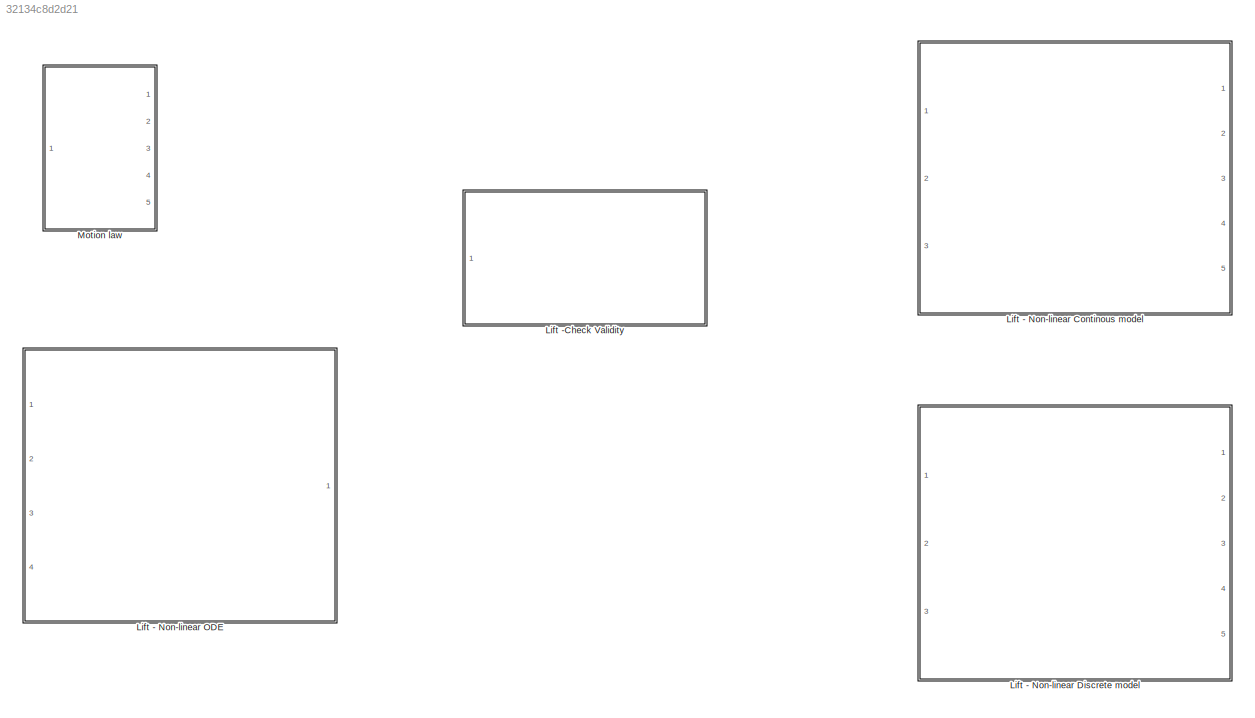
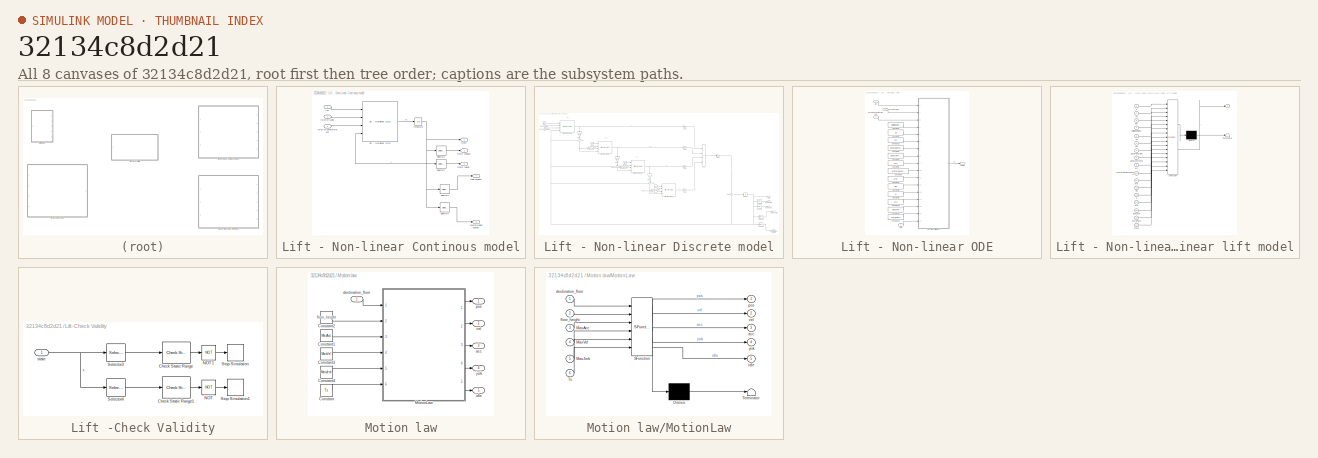
[diagram: thumbnail index - all 8 canvases of the model, root first then tree order]
MODEL slx_32134c8d2d21
KIND library
CONFIG AbsTol = auto
CONFIG EnableMultiTasking = off
CONFIG FixedStep = auto
CONFIG MaxStep = auto
CONFIG MinStep = auto
CONFIG RelTol = 1e-3
CONFIG SampleTimeConstraint = Unconstrained
CONFIG SolverName = VariableStepAuto
CONFIG StartTime = 0.0
CONFIG StopTime = 10.0
BLOCK [SubSystem] Lift - Non-linear Continous model
  Ports = [3, 5]
  RequestExecContextInheritance = off
BLOCK [Integrator] Lift - Non-linear Continous model/Integrator
  InitialCondition = x0
  Ports = [1, 1]
BLOCK [Reference] Lift - Non-linear Continous model/Lift - Non-linear ODE  REF=$bdroot/Lift - Non-linear ODE
  Ports = [4, 1]
  SourceBlock = $bdroot/Lift - Non-linear ODE
BLOCK [Selector] Lift - Non-linear Continous model/Selector1
  IndexOptions = Index vector (dialog)
  Indices = [10]
  InputPortWidth = 10
  OutputSizes = 1
  Ports = [1, 1]
BLOCK [Selector] Lift - Non-linear Continous model/Selector2
  IndexOptions = Index vector (dialog)
  Indices = [9]
  InputPortWidth = 10
  OutputSizes = 1
  Ports = [1, 1]
BLOCK [Selector] Lift - Non-linear Continous model/Selector3
  IndexOptions = Index vector (dialog)
  Indices = [7]
  InputPortWidth = 10
  OutputSizes = 1
  Ports = [1, 1]
BLOCK [Selector] Lift - Non-linear Continous model/Selector4
  IndexOptions = Index vector (dialog)
  Indices = [1]
  InputPortWidth = 10
  OutputSizes = 1
  Ports = [1, 1]
BLOCK [Outport] Lift - Non-linear Continous model/cabin position
  NameLocation = right
  Port = 4
BLOCK [Outport] Lift - Non-linear Continous model/counterweight position
  NameLocation = right
  Port = 5
BLOCK [Inport] Lift - Non-linear Continous model/force on cabin
  Port = 2
BLOCK [Inport] Lift - Non-linear Continous model/force on counterweight
  NameLocation = left
  Port = 3
BLOCK [Outport] Lift - Non-linear Continous model/motor position
  NameLocation = right
  Port = 2
BLOCK [Outport] Lift - Non-linear Continous model/motor velocity
  NameLocation = right
  Port = 3
BLOCK [Outport] Lift - Non-linear Continous model/state
  NameLocation = right
BLOCK [Inport] Lift - Non-linear Continous model/tau
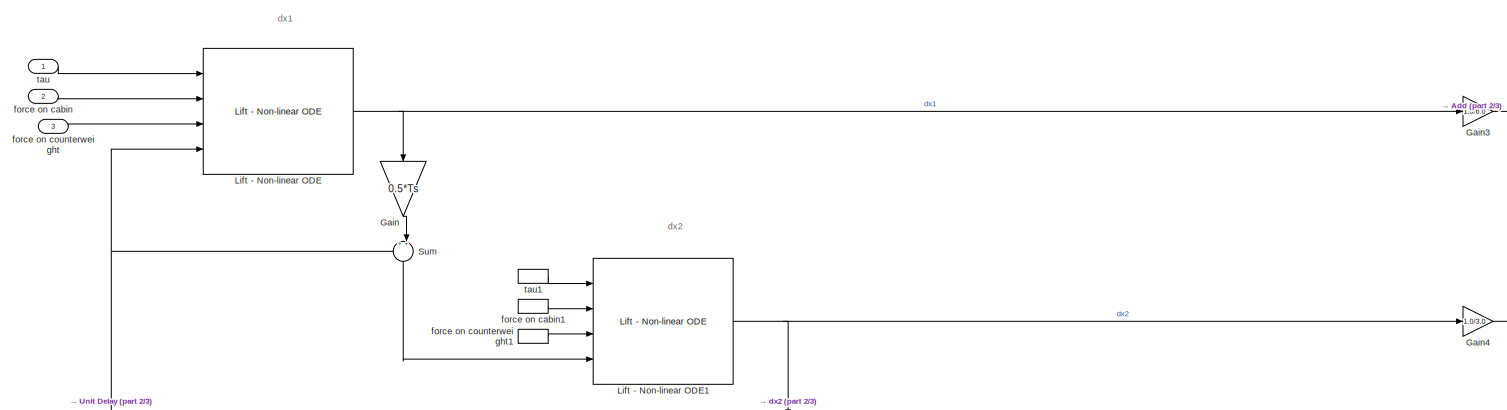
[diagram: Lift - Non-linear Discrete model - part 1/3, top left region]
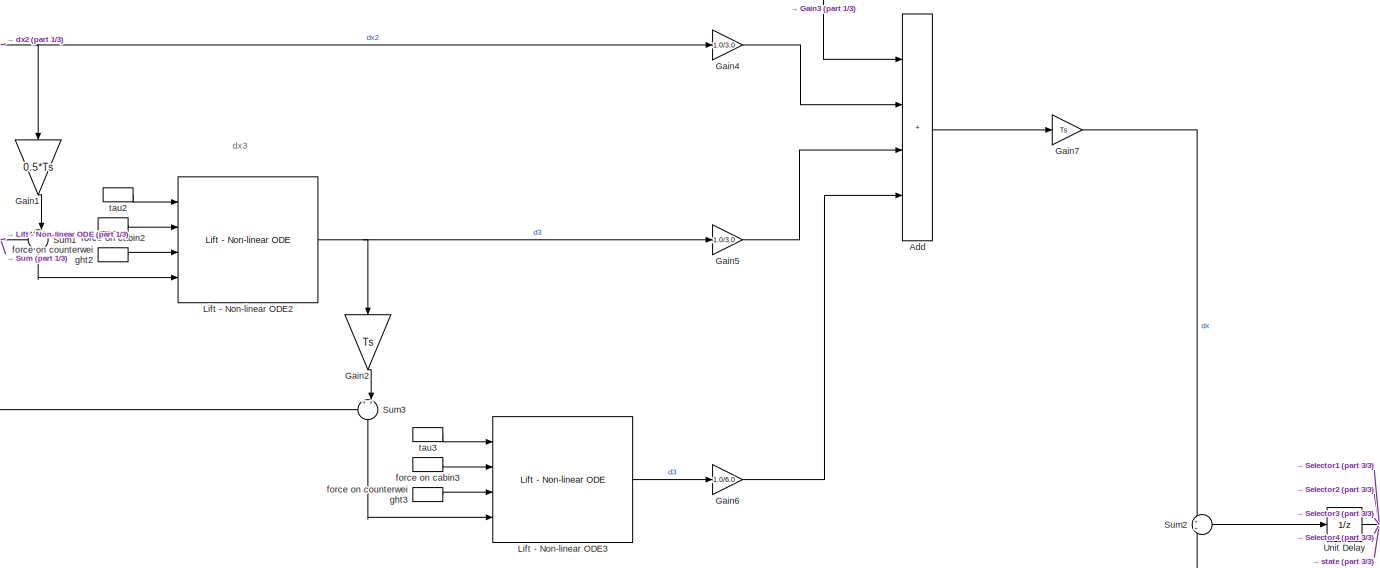
[diagram: Lift - Non-linear Discrete model - part 2/3, central region]
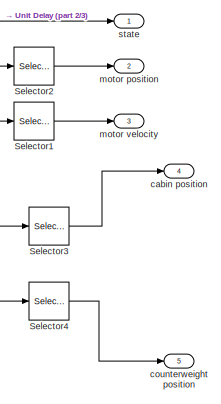
[diagram: Lift - Non-linear Discrete model - part 3/3, bottom right region]
BLOCK [SubSystem] Lift - Non-linear Discrete model
  Ports = [3, 5]
  RequestExecContextInheritance = off
BLOCK [Sum] Lift - Non-linear Discrete model/Add
  IconShape = rectangular
  Inputs = ++++
  Ports = [4, 1]
BLOCK [Gain] Lift - Non-linear Discrete model/Gain
  Gain = 0.5*Ts
  NameLocation = left
BLOCK [Gain] Lift - Non-linear Discrete model/Gain1
  Gain = 0.5*Ts
  NameLocation = left
BLOCK [Gain] Lift - Non-linear Discrete model/Gain2
  Gain = Ts
  NameLocation = left
BLOCK [Gain] Lift - Non-linear Discrete model/Gain3
  Gain = 1.0/6.0
BLOCK [Gain] Lift - Non-linear Discrete model/Gain4
  Gain = 1.0/3.0
BLOCK [Gain] Lift - Non-linear Discrete model/Gain5
  Gain = 1.0/3.0
BLOCK [Gain] Lift - Non-linear Discrete model/Gain6
  Gain = 1.0/6.0
BLOCK [Gain] Lift - Non-linear Discrete model/Gain7
  Gain = Ts
BLOCK [Reference] Lift - Non-linear Discrete model/Lift - Non-linear ODE  REF=$bdroot/Lift - Non-linear ODE
  Ports = [4, 1]
  SourceBlock = $bdroot/Lift - Non-linear ODE
BLOCK [Reference] Lift - Non-linear Discrete model/Lift - Non-linear ODE1  REF=$bdroot/Lift - Non-linear ODE
  Ports = [4, 1]
  SourceBlock = $bdroot/Lift - Non-linear ODE
BLOCK [Reference] Lift - Non-linear Discrete model/Lift - Non-linear ODE2  REF=$bdroot/Lift - Non-linear ODE
  Ports = [4, 1]
  SourceBlock = $bdroot/Lift - Non-linear ODE
BLOCK [Reference] Lift - Non-linear Discrete model/Lift - Non-linear ODE3  REF=$bdroot/Lift - Non-linear ODE
  Ports = [4, 1]
  SourceBlock = $bdroot/Lift - Non-linear ODE
BLOCK [Selector] Lift - Non-linear Discrete model/Selector1
  IndexOptions = Index vector (dialog)
  Indices = [10]
  InputPortWidth = 10
  OutputSizes = 1
  Ports = [1, 1]
BLOCK [Selector] Lift - Non-linear Discrete model/Selector2
  IndexOptions = Index vector (dialog)
  Indices = [9]
  InputPortWidth = 10
  OutputSizes = 1
  Ports = [1, 1]
BLOCK [Selector] Lift - Non-linear Discrete model/Selector3
  IndexOptions = Index vector (dialog)
  Indices = [7]
  InputPortWidth = 10
  OutputSizes = 1
  Ports = [1, 1]
BLOCK [Selector] Lift - Non-linear Discrete model/Selector4
  IndexOptions = Index vector (dialog)
  Indices = [1]
  InputPortWidth = 10
  OutputSizes = 1
  Ports = [1, 1]
BLOCK [Sum] Lift - Non-linear Discrete model/Sum
  Inputs = ++|
  NameLocation = left
  Ports = [2, 1]
BLOCK [Sum] Lift - Non-linear Discrete model/Sum1
  Inputs = ++|
  NameLocation = left
  Ports = [2, 1]
BLOCK [Sum] Lift - Non-linear Discrete model/Sum2
  Ports = [2, 1]
BLOCK [Sum] Lift - Non-linear Discrete model/Sum3
  Inputs = ++|
  NameLocation = left
  Ports = [2, 1]
BLOCK [UnitDelay] Lift - Non-linear Discrete model/Unit Delay
  HasFrameUpgradeWarning = on
  InitialCondition = x0
  SampleTime = Ts
BLOCK [Outport] Lift - Non-linear Discrete model/cabin position
  NameLocation = right
  Port = 4
BLOCK [Outport] Lift - Non-linear Discrete model/counterweight position
  NameLocation = right
  Port = 5
BLOCK [Inport] Lift - Non-linear Discrete model/force on cabin
  Port = 2
BLOCK [InportShadow] Lift - Non-linear Discrete model/force on cabin1
  Port = 2
BLOCK [InportShadow] Lift - Non-linear Discrete model/force on cabin2
  Port = 2
BLOCK [InportShadow] Lift - Non-linear Discrete model/force on cabin3
  Port = 2
BLOCK [Inport] Lift - Non-linear Discrete model/force on counterweight
  NameLocation = left
  Port = 3
BLOCK [InportShadow] Lift - Non-linear Discrete model/force on counterweight1
  NameLocation = left
  Port = 3
BLOCK [InportShadow] Lift - Non-linear Discrete model/force on counterweight2
  NameLocation = left
  Port = 3
BLOCK [InportShadow] Lift - Non-linear Discrete model/force on counterweight3
  NameLocation = left
  Port = 3
BLOCK [Outport] Lift - Non-linear Discrete model/motor position
  NameLocation = right
  Port = 2
BLOCK [Outport] Lift - Non-linear Discrete model/motor velocity
  NameLocation = right
  Port = 3
BLOCK [Outport] Lift - Non-linear Discrete model/state
  NameLocation = right
BLOCK [Inport] Lift - Non-linear Discrete model/tau
BLOCK [InportShadow] Lift - Non-linear Discrete model/tau1
BLOCK [InportShadow] Lift - Non-linear Discrete model/tau2
BLOCK [InportShadow] Lift - Non-linear Discrete model/tau3
BLOCK [SubSystem] Lift - Non-linear ODE
  Ports = [4, 1]
  RequestExecContextInheritance = off
BLOCK [Constant] Lift - Non-linear ODE/Constant1
  Value = BuildingHeight
BLOCK [Constant] Lift - Non-linear ODE/Constant10
  Value = mu
BLOCK [Constant] Lift - Non-linear ODE/Constant11
  Value = gearbox
BLOCK [Constant] Lift - Non-linear ODE/Constant12
  Value = Jm
BLOCK [Constant] Lift - Non-linear ODE/Constant13
  Value = min_length
BLOCK [Constant] Lift - Non-linear ODE/Constant2
  Value = Jp
BLOCK [Constant] Lift - Non-linear ODE/Constant3
  Value = LinearDamping
BLOCK [Constant] Lift - Non-linear ODE/Constant4
  Value = LinearStiffness
BLOCK [Constant] Lift - Non-linear ODE/Constant5
  Value = Mc
BLOCK [Constant] Lift - Non-linear ODE/Constant6
  Value = MotorViscousFriction
BLOCK [Constant] Lift - Non-linear ODE/Constant7
  Value = Mw
BLOCK [Constant] Lift - Non-linear ODE/Constant8
  Value = Rp
BLOCK [Constant] Lift - Non-linear ODE/Constant9
  Value = g
BLOCK [Outport] Lift - Non-linear ODE/Dstate
  NameLocation = right
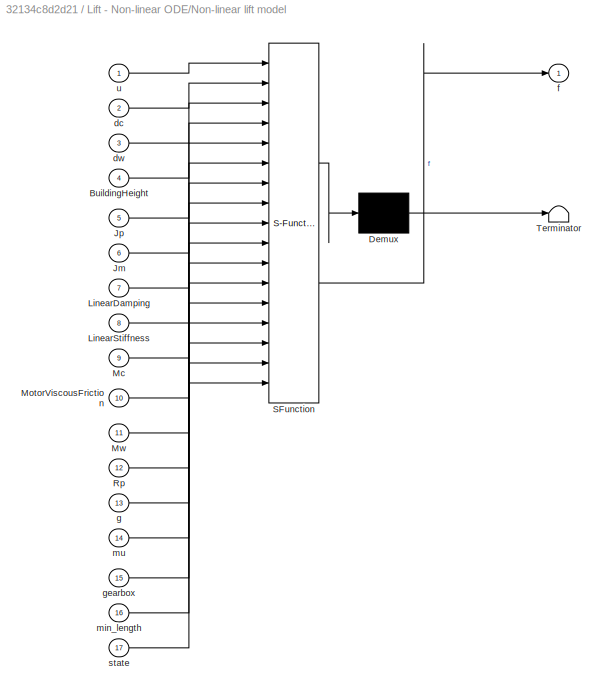
BLOCK [SubSystem] Lift - Non-linear ODE/Non-linear lift model
  ErrorFcn = Stateflow.Translate.translate
  PermitHierarchicalResolution = ExplicitOnly
  Ports = [17, 1]
  RequestExecContextInheritance = off
  SFBlockType = MATLAB Function
  TreatAsAtomicUnit = on
BLOCK [Demux] Lift - Non-linear ODE/Non-linear lift model/ Demux 
  Outputs = 1
  Ports = [1, 1]
BLOCK [S-Function] Lift - Non-linear ODE/Non-linear lift model/ SFunction 
  EnableBusSupport = off
  FunctionName = sf_sfun
  PortCounts = [17 2]
  Ports = [17, 2]
  SFcnIsStateOwnerBlock = off
  SFunctionDeploymentMode = off
  Tag = Stateflow S-Function 3
BLOCK [Terminator] Lift - Non-linear ODE/Non-linear lift model/ Terminator 
BLOCK [Inport] Lift - Non-linear ODE/Non-linear lift model/BuildingHeight
  Port = 4
BLOCK [Inport] Lift - Non-linear ODE/Non-linear lift model/Jm
  Port = 6
BLOCK [Inport] Lift - Non-linear ODE/Non-linear lift model/Jp
  Port = 5
BLOCK [Inport] Lift - Non-linear ODE/Non-linear lift model/LinearDamping
  Port = 7
BLOCK [Inport] Lift - Non-linear ODE/Non-linear lift model/LinearStiffness
  Port = 8
BLOCK [Inport] Lift - Non-linear ODE/Non-linear lift model/Mc
  Port = 9
BLOCK [Inport] Lift - Non-linear ODE/Non-linear lift model/MotorViscousFriction
  Port = 10
BLOCK [Inport] Lift - Non-linear ODE/Non-linear lift model/Mw
  Port = 11
BLOCK [Inport] Lift - Non-linear ODE/Non-linear lift model/Rp
  Port = 12
BLOCK [Inport] Lift - Non-linear ODE/Non-linear lift model/dc
  Port = 2
BLOCK [Inport] Lift - Non-linear ODE/Non-linear lift model/dw
  Port = 3
BLOCK [Outport] Lift - Non-linear ODE/Non-linear lift model/f
BLOCK [Inport] Lift - Non-linear ODE/Non-linear lift model/g
  Port = 13
BLOCK [Inport] Lift - Non-linear ODE/Non-linear lift model/gearbox
  Port = 15
BLOCK [Inport] Lift - Non-linear ODE/Non-linear lift model/min_length
  Port = 16
BLOCK [Inport] Lift - Non-linear ODE/Non-linear lift model/mu
  Port = 14
BLOCK [Inport] Lift - Non-linear ODE/Non-linear lift model/state
  Port = 17
BLOCK [Inport] Lift - Non-linear ODE/Non-linear lift model/u
BLOCK [Inport] Lift - Non-linear ODE/force on cabin
  Port = 2
BLOCK [Inport] Lift - Non-linear ODE/force on counterweight
  NameLocation = left
  Port = 3
BLOCK [Inport] Lift - Non-linear ODE/state
  Port = 4
BLOCK [Inport] Lift - Non-linear ODE/tau
BLOCK [SubSystem] Lift -Check Validity
  Ports = [1]
  RequestExecContextInheritance = off
BLOCK [Reference] Lift -Check Validity/Check Static Range  REF=simulink/Model
Verification/Check 
Static Range
  Description = -min_length*.9 <= u <= BuildingHeight+min_length*.9
  Ports = [1, 1]
  SourceBlock = simulink/Model\nVerification/Check \nStatic Range
  SourceProductBaseCode = SL
  SourceType = Checks_SRange
BLOCK [Reference] Lift -Check Validity/Check Static Range1  REF=simulink/Model
Verification/Check 
Static Range
  Description = -min_length*.9 <= u <= BuildingHeight+min_length*.9
  Ports = [1, 1]
  SourceBlock = simulink/Model\nVerification/Check \nStatic Range
  SourceProductBaseCode = SL
  SourceType = Checks_SRange
BLOCK [Logic] Lift -Check Validity/NOT
  AllPortsSameDT = off
  IconShape = distinctive
  Operator = NOT
  OutDataTypeStr = boolean
  Ports = [1, 1]
BLOCK [Logic] Lift -Check Validity/NOT1
  AllPortsSameDT = off
  IconShape = distinctive
  Operator = NOT
  OutDataTypeStr = boolean
  Ports = [1, 1]
BLOCK [Selector] Lift -Check Validity/Selector3
  IndexOptions = Index vector (dialog)
  Indices = [7]
  InputPortWidth = 10
  OutputSizes = 1
  Ports = [1, 1]
BLOCK [Selector] Lift -Check Validity/Selector4
  IndexOptions = Index vector (dialog)
  Indices = [1]
  InputPortWidth = 10
  OutputSizes = 1
  Ports = [1, 1]
BLOCK [Stop] Lift -Check Validity/Stop Simulation
BLOCK [Stop] Lift -Check Validity/Stop Simulation1
BLOCK [Inport] Lift -Check Validity/state
BLOCK [SubSystem] Motion law
  Ports = [1, 5]
  RequestExecContextInheritance = off
BLOCK [Constant] Motion law/Constant
  Value = Ts
BLOCK [Constant] Motion law/Constant1
  Value = MaxAcc
BLOCK [Constant] Motion law/Constant2
  Value = floor_height
BLOCK [Constant] Motion law/Constant3
  Value = MaxVel
BLOCK [Constant] Motion law/Constant4
  Value = MaxJerk
BLOCK [SubSystem] Motion law/MotionLaw
  ErrorFcn = Stateflow.Translate.translate
  PermitHierarchicalResolution = ExplicitOnly
  Ports = [6, 5]
  RequestExecContextInheritance = off
  SFBlockType = MATLAB Function
  SystemSampleTime = Ts
  TreatAsAtomicUnit = on
BLOCK [Demux] Motion law/MotionLaw/ Demux 
  Outputs = 1
  Ports = [1, 1]
BLOCK [S-Function] Motion law/MotionLaw/ SFunction 
  EnableBusSupport = on
  FunctionName = sf_sfun
  PortCounts = [6 6]
  Ports = [6, 6]
  SFcnIsStateOwnerBlock = off
  SFunctionDeploymentMode = off
  Tag = Stateflow S-Function 1
BLOCK [Terminator] Motion law/MotionLaw/ Terminator 
BLOCK [Inport] Motion law/MotionLaw/MaxAcc
  Port = 3
BLOCK [Inport] Motion law/MotionLaw/MaxJerk
  Port = 5
BLOCK [Inport] Motion law/MotionLaw/MaxVel
  Port = 4
BLOCK [Inport] Motion law/MotionLaw/Ts
  Port = 6
BLOCK [Outport] Motion law/MotionLaw/acc
  Port = 3
BLOCK [Inport] Motion law/MotionLaw/destination_floor
BLOCK [Inport] Motion law/MotionLaw/floor_height
  Port = 2
BLOCK [Outport] Motion law/MotionLaw/idle
  Port = 5
BLOCK [Outport] Motion law/MotionLaw/jerk
  Port = 4
BLOCK [Outport] Motion law/MotionLaw/pos
BLOCK [Outport] Motion law/MotionLaw/vel
  Port = 2
BLOCK [Outport] Motion law/acc
  Port = 3
BLOCK [Inport] Motion law/destination_floor
BLOCK [Outport] Motion law/idle
  NameLocation = top
  Port = 5
BLOCK [Outport] Motion law/jerk
  Port = 4
BLOCK [Outport] Motion law/pos
BLOCK [Outport] Motion law/vel
  Port = 2
ANNOTATION Lift - Non-linear Discrete model: dx1
ANNOTATION Lift - Non-linear Discrete model: dx2
ANNOTATION Lift - Non-linear Discrete model: dx3
NET Lift - Non-linear Continous model/Integrator:1 -> Lift - Non-linear Continous model/Lift - Non-linear ODE:4, Lift - Non-linear Continous model/Selector1:1, Lift - Non-linear Continous model/Selector2:1, Lift - Non-linear Continous model/Selector3:1, Lift - Non-linear Continous model/Selector4:1, Lift - Non-linear Continous model/state:1
LINE Lift - Non-linear Continous model/Lift - Non-linear ODE:1 -> Lift - Non-linear Continous model/Integrator:1
LINE Lift - Non-linear Continous model/Selector1:1 -> Lift - Non-linear Continous model/motor velocity:1
LINE Lift - Non-linear Continous model/Selector2:1 -> Lift - Non-linear Continous model/motor position:1
LINE Lift - Non-linear Continous model/Selector3:1 -> Lift - Non-linear Continous model/cabin position:1
LINE Lift - Non-linear Continous model/Selector4:1 -> Lift - Non-linear Continous model/counterweight position:1
LINE Lift - Non-linear Continous model/force on cabin:1 -> Lift - Non-linear Continous model/Lift - Non-linear ODE:2
LINE Lift - Non-linear Continous model/force on counterweight:1 -> Lift - Non-linear Continous model/Lift - Non-linear ODE:3
LINE Lift - Non-linear Continous model/tau:1 -> Lift - Non-linear Continous model/Lift - Non-linear ODE:1
LINE Lift - Non-linear Discrete model/Add:1 -> Lift - Non-linear Discrete model/Gain7:1
LINE Lift - Non-linear Discrete model/Gain1:1 -> Lift - Non-linear Discrete model/Sum1:2
LINE Lift - Non-linear Discrete model/Gain2:1 -> Lift - Non-linear Discrete model/Sum3:2
LINE Lift - Non-linear Discrete model/Gain3:1 -> Lift - Non-linear Discrete model/Add:1
LINE Lift - Non-linear Discrete model/Gain4:1 -> Lift - Non-linear Discrete model/Add:2
LINE Lift - Non-linear Discrete model/Gain5:1 -> Lift - Non-linear Discrete model/Add:3
LINE Lift - Non-linear Discrete model/Gain6:1 -> Lift - Non-linear Discrete model/Add:4
LINE Lift - Non-linear Discrete model/Gain7:1 -> Lift - Non-linear Discrete model/Sum2:1
LINE Lift - Non-linear Discrete model/Gain:1 -> Lift - Non-linear Discrete model/Sum:2
NET Lift - Non-linear Discrete model/Lift - Non-linear ODE1:1 -> Lift - Non-linear Discrete model/Gain1:1, Lift - Non-linear Discrete model/Gain4:1
NET Lift - Non-linear Discrete model/Lift - Non-linear ODE2:1 -> Lift - Non-linear Discrete model/Gain2:1, Lift - Non-linear Discrete model/Gain5:1
LINE Lift - Non-linear Discrete model/Lift - Non-linear ODE3:1 -> Lift - Non-linear Discrete model/Gain6:1
NET Lift - Non-linear Discrete model/Lift - Non-linear ODE:1 -> Lift - Non-linear Discrete model/Gain3:1, Lift - Non-linear Discrete model/Gain:1
LINE Lift - Non-linear Discrete model/Selector1:1 -> Lift - Non-linear Discrete model/motor velocity:1
LINE Lift - Non-linear Discrete model/Selector2:1 -> Lift - Non-linear Discrete model/motor position:1
LINE Lift - Non-linear Discrete model/Selector3:1 -> Lift - Non-linear Discrete model/cabin position:1
LINE Lift - Non-linear Discrete model/Selector4:1 -> Lift - Non-linear Discrete model/counterweight position:1
LINE Lift - Non-linear Discrete model/Sum1:1 -> Lift - Non-linear Discrete model/Lift - Non-linear ODE2:4
LINE Lift - Non-linear Discrete model/Sum2:1 -> Lift - Non-linear Discrete model/Unit Delay:1
LINE Lift - Non-linear Discrete model/Sum3:1 -> Lift - Non-linear Discrete model/Lift - Non-linear ODE3:4
LINE Lift - Non-linear Discrete model/Sum:1 -> Lift - Non-linear Discrete model/Lift - Non-linear ODE1:4
NET Lift - Non-linear Discrete model/Unit Delay:1 -> Lift - Non-linear Discrete model/Lift - Non-linear ODE:4, Lift - Non-linear Discrete model/Selector1:1, Lift - Non-linear Discrete model/Selector2:1, Lift - Non-linear Discrete model/Selector3:1, Lift - Non-linear Discrete model/Selector4:1, Lift - Non-linear Discrete model/Sum1:1, Lift - Non-linear Discrete model/Sum2:2, Lift - Non-linear Discrete model/Sum3:1, Lift - Non-linear Discrete model/Sum:1, Lift - Non-linear Discrete model/state:1
LINE Lift - Non-linear Discrete model/force on cabin1:1 -> Lift - Non-linear Discrete model/Lift - Non-linear ODE1:2
LINE Lift - Non-linear Discrete model/force on cabin2:1 -> Lift - Non-linear Discrete model/Lift - Non-linear ODE2:2
LINE Lift - Non-linear Discrete model/force on cabin3:1 -> Lift - Non-linear Discrete model/Lift - Non-linear ODE3:2
LINE Lift - Non-linear Discrete model/force on cabin:1 -> Lift - Non-linear Discrete model/Lift - Non-linear ODE:2
LINE Lift - Non-linear Discrete model/force on counterweight1:1 -> Lift - Non-linear Discrete model/Lift - Non-linear ODE1:3
LINE Lift - Non-linear Discrete model/force on counterweight2:1 -> Lift - Non-linear Discrete model/Lift - Non-linear ODE2:3
LINE Lift - Non-linear Discrete model/force on counterweight3:1 -> Lift - Non-linear Discrete model/Lift - Non-linear ODE3:3
LINE Lift - Non-linear Discrete model/force on counterweight:1 -> Lift - Non-linear Discrete model/Lift - Non-linear ODE:3
LINE Lift - Non-linear Discrete model/tau1:1 -> Lift - Non-linear Discrete model/Lift - Non-linear ODE1:1
LINE Lift - Non-linear Discrete model/tau2:1 -> Lift - Non-linear Discrete model/Lift - Non-linear ODE2:1
LINE Lift - Non-linear Discrete model/tau3:1 -> Lift - Non-linear Discrete model/Lift - Non-linear ODE3:1
LINE Lift - Non-linear Discrete model/tau:1 -> Lift - Non-linear Discrete model/Lift - Non-linear ODE:1
LINE Lift - Non-linear ODE/Constant10:1 -> Lift - Non-linear ODE/Non-linear lift model:14
LINE Lift - Non-linear ODE/Constant11:1 -> Lift - Non-linear ODE/Non-linear lift model:15
LINE Lift - Non-linear ODE/Constant12:1 -> Lift - Non-linear ODE/Non-linear lift model:6
LINE Lift - Non-linear ODE/Constant13:1 -> Lift - Non-linear ODE/Non-linear lift model:16
LINE Lift - Non-linear ODE/Constant1:1 -> Lift - Non-linear ODE/Non-linear lift model:4
LINE Lift - Non-linear ODE/Constant2:1 -> Lift - Non-linear ODE/Non-linear lift model:5
LINE Lift - Non-linear ODE/Constant3:1 -> Lift - Non-linear ODE/Non-linear lift model:7
LINE Lift - Non-linear ODE/Constant4:1 -> Lift - Non-linear ODE/Non-linear lift model:8
LINE Lift - Non-linear ODE/Constant5:1 -> Lift - Non-linear ODE/Non-linear lift model:9
LINE Lift - Non-linear ODE/Constant6:1 -> Lift - Non-linear ODE/Non-linear lift model:10
LINE Lift - Non-linear ODE/Constant7:1 -> Lift - Non-linear ODE/Non-linear lift model:11
LINE Lift - Non-linear ODE/Constant8:1 -> Lift - Non-linear ODE/Non-linear lift model:12
LINE Lift - Non-linear ODE/Constant9:1 -> Lift - Non-linear ODE/Non-linear lift model:13
LINE Lift - Non-linear ODE/Non-linear lift model:1 -> Lift - Non-linear ODE/Dstate:1
LINE Lift - Non-linear ODE/force on cabin:1 -> Lift - Non-linear ODE/Non-linear lift model:2
LINE Lift - Non-linear ODE/force on counterweight:1 -> Lift - Non-linear ODE/Non-linear lift model:3
LINE Lift - Non-linear ODE/state:1 -> Lift - Non-linear ODE/Non-linear lift model:17
LINE Lift - Non-linear ODE/tau:1 -> Lift - Non-linear ODE/Non-linear lift model:1
LINE Lift -Check Validity/Check Static Range1:1 -> Lift -Check Validity/NOT:1
LINE Lift -Check Validity/Check Static Range:1 -> Lift -Check Validity/NOT1:1
LINE Lift -Check Validity/NOT1:1 -> Lift -Check Validity/Stop Simulation:1
LINE Lift -Check Validity/NOT:1 -> Lift -Check Validity/Stop Simulation1:1
LINE Lift -Check Validity/Selector3:1 -> Lift -Check Validity/Check Static Range:1
LINE Lift -Check Validity/Selector4:1 -> Lift -Check Validity/Check Static Range1:1
NET Lift -Check Validity/state:1 -> Lift -Check Validity/Selector3:1, Lift -Check Validity/Selector4:1
LINE Motion law/Constant1:1 -> Motion law/MotionLaw:3
LINE Motion law/Constant2:1 -> Motion law/MotionLaw:2
LINE Motion law/Constant3:1 -> Motion law/MotionLaw:4
LINE Motion law/Constant4:1 -> Motion law/MotionLaw:5
LINE Motion law/Constant:1 -> Motion law/MotionLaw:6
LINE Motion law/MotionLaw:1 -> Motion law/pos:1
LINE Motion law/MotionLaw:2 -> Motion law/vel:1
LINE Motion law/MotionLaw:3 -> Motion law/acc:1
LINE Motion law/MotionLaw:4 -> Motion law/jerk:1
LINE Motion law/MotionLaw:5 -> Motion law/idle:1
LINE Motion law/destination_floor:1 -> Motion law/MotionLaw:1
note: NET lines group one-source signal fan-out (src -> all destinations, sorted); 1:1 wires keep LINE
CHART Lift - Non-linear ODE/Non-linear lift model states=1 transitions=1
  STATE_LABEL 'eML_blk_kernel()'
  STATE_LABEL 'SCRIPT:\nfunction f = LiftDynamicsEquation(u,dc,dw,BuildingHeight,Jp,Jm,LinearDamping,LinearStiffness,Mc,MotorViscousFriction,Mw,Rp,g,mu,gearbox,min_length,state)\n%    This function was generated by the Symbolic Math Toolbox version 9.0.\n%    27-Oct-2022 19:13:42\n\n%Version: 1.0\nt2 = Rp.^2;\nt3 = gearbox.^2;\nt4 = min_length.^2;\nt5 = state(9).^2;\nt6 = LinearStiffness.*min_length.*2.0;\nt7 = Rp.*gearbox...<+1425ch>'
CHART Motion law/MotionLaw states=1 transitions=1
  STATE_LABEL 'eML_blk_kernel()'
  STATE_LABEL 'SCRIPT:\nfunction [pos,vel,acc,jerk,idle]  = MotionLawStateMachine(destination_floor,floor_height,MaxAcc,MaxVel,MaxJerk,Ts)\n\npersistent state last_floor time duration direction t1 t2 t4 destination_floor_\nif isempty(state)\n    state=0; %IDLE\n    last_floor=destination_floor;\n    destination_floor_=destination_floor;\n    time=0;\n    duration=1;\n    direction=0;\n    t1=0;\n    t2=0;\n    t4=0;\n\nend\n\n\ni...<+3608ch>'
CHART  states=0 transitions=0
CHART  states=0 transitions=0
